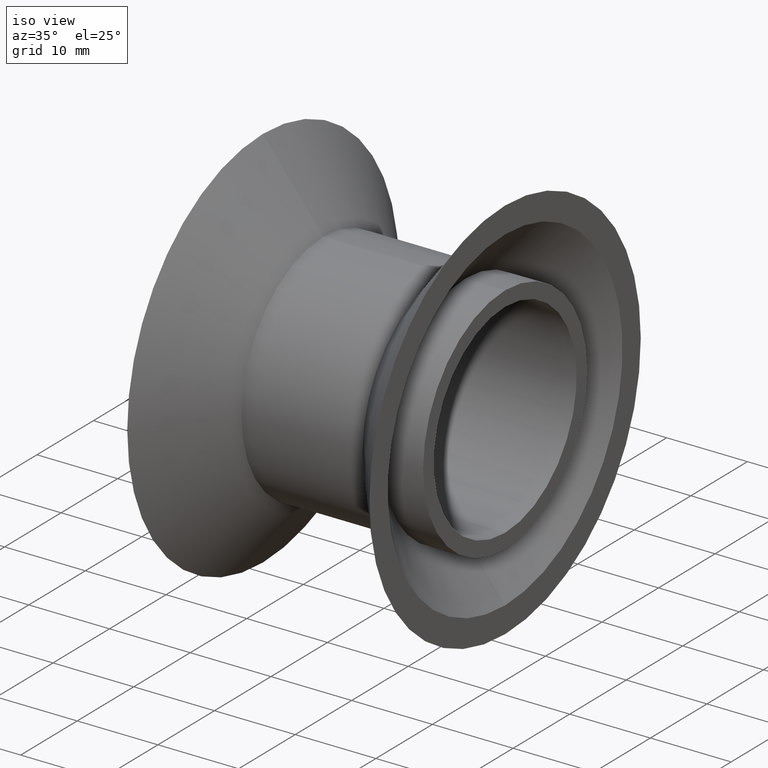
[diagram: clean part render]
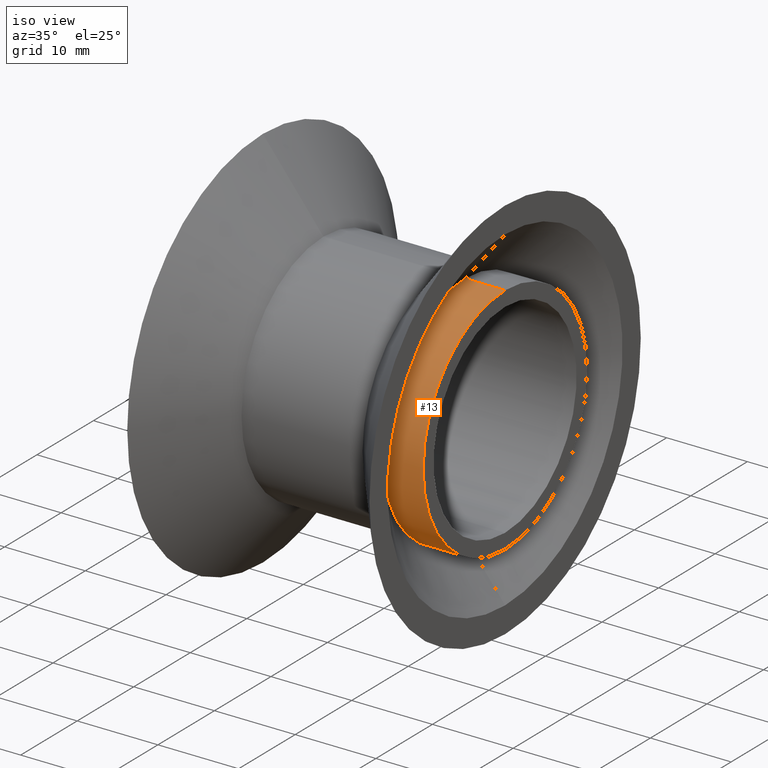
[diagram: same view with one face highlighted and labeled with its STEP entity id]
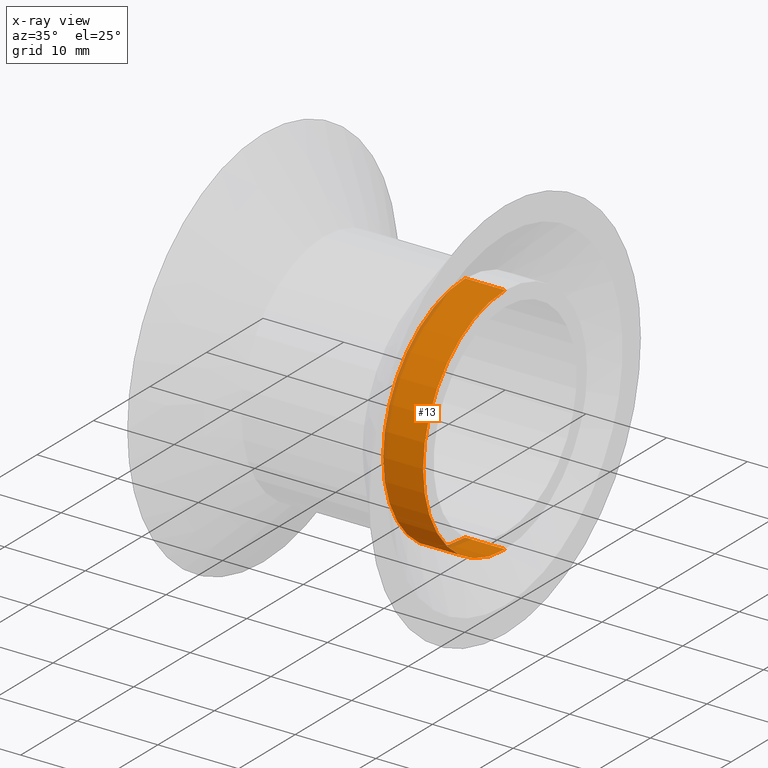
[diagram: x-ray of the same camera — body ghosted, the highlighted face saturated]
A machine part, iso view. The second image highlights one B-rep face of the part: STEP entity #13.
The next image is the same camera in x-ray: the body ghosted, the highlighted face saturated — about 7% of this face is hidden behind the body in this view.
In plain terms, the highlighted cylindrical surface (partial cylindrical patch) has radius 14.5 mm, axis along (-1, -0, -0).
Its self-contained STEP definition (entity closure, byte-faithful):
#1 = FACE_OUTER_BOUND ( 'NONE', #34, .T. ) ;
#11 = VERTEX_POINT ( 'NONE', #223 ) ;
#13 = ADVANCED_FACE ( 'NONE', ( #1 ), #148, .T. ) ;
#23 = EDGE_CURVE ( 'NONE', #11, #164, #498, .T. ) ;
#29 = LINE ( 'NONE', #408, #529 ) ;
#34 = EDGE_LOOP ( 'NONE', ( #478, #568, #334, #537 ) ) ;
#36 = DIRECTION ( 'NONE',  ( -1.000000000000000000, -0.0000000000000000000, -0.0000000000000000000 ) ) ;
#63 = EDGE_CURVE ( 'NONE', #221, #11, #199, .T. ) ;
#85 = DIRECTION ( 'NONE',  ( -1.000000000000000000, -0.0000000000000000000, -0.0000000000000000000 ) ) ;
#93 = EDGE_CURVE ( 'NONE', #221, #361, #29, .T. ) ;
#113 = CARTESIAN_POINT ( 'NONE',  ( 10.04815124987582031, 0.0000000000000000000, 0.0000000000000000000 ) ) ;
#137 = CARTESIAN_POINT ( 'NONE',  ( 0.0000000000000000000, 0.0000000000000000000, 14.49999999999998934 ) ) ;
#148 = CYLINDRICAL_SURFACE ( 'NONE', #522, 14.49999999999998934 ) ;
#164 = VERTEX_POINT ( 'NONE', #440 ) ;
#182 = CARTESIAN_POINT ( 'NONE',  ( 15.00000000000000000, 0.0000000000000000000, 0.0000000000000000000 ) ) ;
#191 = VECTOR ( 'NONE', #488, 1000.000000000000000 ) ;
#199 = CIRCLE ( 'NONE', #329, 14.49999999999998934 ) ;
#221 = VERTEX_POINT ( 'NONE', #366 ) ;
#223 = CARTESIAN_POINT ( 'NONE',  ( 15.00000000000000000, 0.0000000000000000000, 14.49999999999998934 ) ) ;
#229 = DIRECTION ( 'NONE',  ( -1.000000000000000000, -0.0000000000000000000, -0.0000000000000000000 ) ) ;
#279 = DIRECTION ( 'NONE',  ( -1.000000000000000000, -0.0000000000000000000, -0.0000000000000000000 ) ) ;
#289 = CARTESIAN_POINT ( 'NONE',  ( 10.04815124987582031, 1.775737858763660437E-15, -14.49999999999998757 ) ) ;
#329 = AXIS2_PLACEMENT_3D ( 'NONE', #182, #229, #449 ) ;
#334 = ORIENTED_EDGE ( 'NONE', *, *, #23, .T. ) ;
#361 = VERTEX_POINT ( 'NONE', #289 ) ;
#362 = EDGE_CURVE ( 'NONE', #361, #164, #442, .T. ) ;
#366 = CARTESIAN_POINT ( 'NONE',  ( 15.00000000000000000, 1.775737858763660832E-15, -14.49999999999998934 ) ) ;
#400 = DIRECTION ( 'NONE',  ( 0.0000000000000000000, 0.0000000000000000000, 1.000000000000000000 ) ) ;
#408 = CARTESIAN_POINT ( 'NONE',  ( 0.0000000000000000000, 1.775737858763660832E-15, -14.49999999999998934 ) ) ;
#423 = AXIS2_PLACEMENT_3D ( 'NONE', #113, #279, #512 ) ;
#440 = CARTESIAN_POINT ( 'NONE',  ( 10.04815124987582031, 0.0000000000000000000, 14.49999999999998757 ) ) ;
#442 = CIRCLE ( 'NONE', #423, 14.49999999999998757 ) ;
#449 = DIRECTION ( 'NONE',  ( 0.0000000000000000000, 0.0000000000000000000, 1.000000000000000000 ) ) ;
#478 = ORIENTED_EDGE ( 'NONE', *, *, #93, .F. ) ;
#488 = DIRECTION ( 'NONE',  ( -1.000000000000000000, -0.0000000000000000000, -0.0000000000000000000 ) ) ;
#498 = LINE ( 'NONE', #137, #191 ) ;
#512 = DIRECTION ( 'NONE',  ( 0.0000000000000000000, 0.0000000000000000000, 1.000000000000000000 ) ) ;
#522 = AXIS2_PLACEMENT_3D ( 'NONE', #573, #36, #400 ) ;
#529 = VECTOR ( 'NONE', #85, 1000.000000000000000 ) ;
#537 = ORIENTED_EDGE ( 'NONE', *, *, #362, .F. ) ;
#568 = ORIENTED_EDGE ( 'NONE', *, *, #63, .T. ) ;
#573 = CARTESIAN_POINT ( 'NONE',  ( 0.0000000000000000000, 0.0000000000000000000, 0.0000000000000000000 ) ) ;